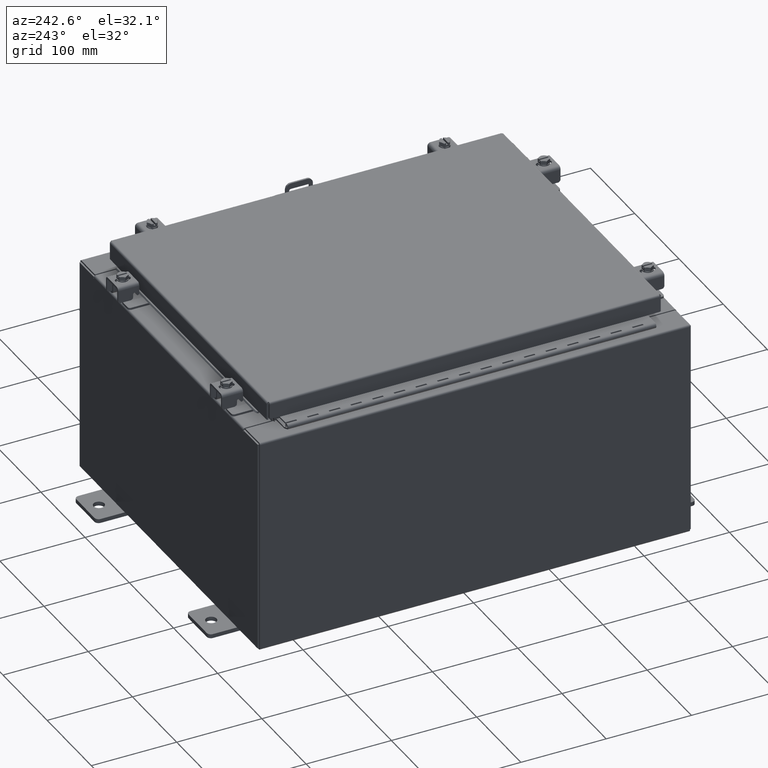
[diagram: clean part render]
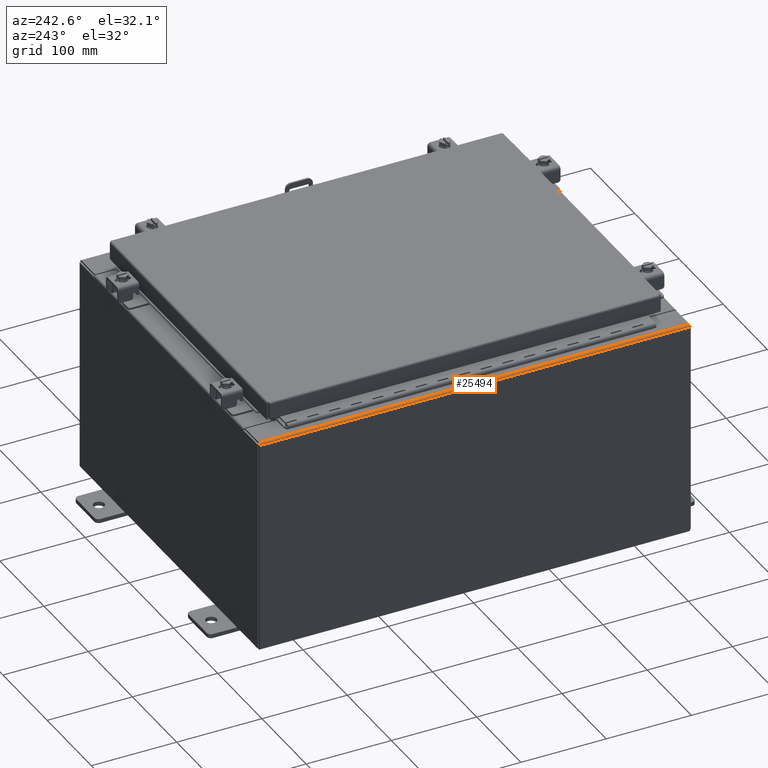
[diagram: same view with one face highlighted and labeled with its STEP entity id]
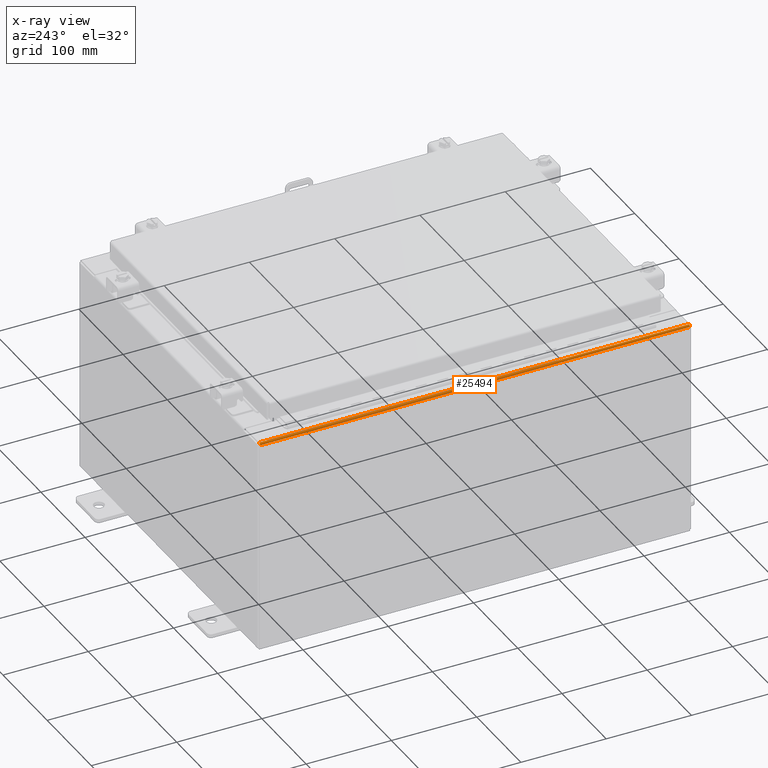
[diagram: x-ray of the same camera — body ghosted, the highlighted face saturated]
A machine part, auxiliary view. The second image highlights one B-rep face of the part: STEP entity #25494.
The next image is the same camera in x-ray: the body ghosted, the highlighted face saturated — about 0% of this face is hidden behind the body in this view.
In plain terms, the highlighted cylindrical surface (edge-blend (fillet) strip) has radius 2.2276 mm, axis along (-0, -1, -0).
Its self-contained STEP definition (entity closure, byte-faithful):
#1281 = CIRCLE ( 'NONE', #18644, 0.08769999999999918100 ) ;
#1603 = LINE ( 'NONE', #15165, #25097 ) ;
#1783 = DIRECTION ( 'NONE',  ( 0.0000000000000000000, 1.000000000000000000, 0.0000000000000000000 ) ) ;
#3465 = CIRCLE ( 'NONE', #22845, 0.08769999999999918100 ) ;
#5280 = CYLINDRICAL_SURFACE ( 'NONE', #7145, 0.08769999999999918100 ) ;
#5693 = ORIENTED_EDGE ( 'NONE', *, *, #13336, .F. ) ;
#6310 = ORIENTED_EDGE ( 'NONE', *, *, #13913, .F. ) ;
#7145 = AXIS2_PLACEMENT_3D ( 'NONE', #25088, #22849, #11511 ) ;
#7323 = CARTESIAN_POINT ( 'NONE',  ( -7.912300000000032100, -9.925300000000000000, 9.837599999999998300 ) ) ;
#7613 = LINE ( 'NONE', #13667, #14422 ) ;
#7684 = DIRECTION ( 'NONE',  ( -0.0000000000000000000, -1.000000000000000000, -0.0000000000000000000 ) ) ;
#7773 = CARTESIAN_POINT ( 'NONE',  ( -8.000000000000032000, 9.925299999999998200, 9.837599999999998300 ) ) ;
#9597 = EDGE_CURVE ( 'NONE', #9756, #13533, #7613, .T. ) ;
#9756 = VERTEX_POINT ( 'NONE', #27359 ) ;
#11511 = DIRECTION ( 'NONE',  ( 0.0000000000000000000, 0.0000000000000000000, 1.000000000000000000 ) ) ;
#12703 = DIRECTION ( 'NONE',  ( 0.0000000000000000000, 0.0000000000000000000, -1.000000000000000000 ) ) ;
#13336 = EDGE_CURVE ( 'NONE', #23448, #13533, #3465, .T. ) ;
#13402 = CARTESIAN_POINT ( 'NONE',  ( -8.000000000000032000, -9.925300000000000000, 9.837599999999998300 ) ) ;
#13533 = VERTEX_POINT ( 'NONE', #19234 ) ;
#13667 = CARTESIAN_POINT ( 'NONE',  ( -7.912300000000032100, 9.925299999999998200, 9.925299999999998200 ) ) ;
#13913 = EDGE_CURVE ( 'NONE', #9756, #14259, #1281, .T. ) ;
#14259 = VERTEX_POINT ( 'NONE', #13402 ) ;
#14422 = VECTOR ( 'NONE', #26973, 39.37007874015748100 ) ;
#15165 = CARTESIAN_POINT ( 'NONE',  ( -8.000000000000032000, -9.925300000000001800, 9.837599999999998300 ) ) ;
#17415 = FACE_OUTER_BOUND ( 'NONE', #19583, .T. ) ;
#17990 = ORIENTED_EDGE ( 'NONE', *, *, #28815, .F. ) ;
#18644 = AXIS2_PLACEMENT_3D ( 'NONE', #7323, #7684, #27151 ) ;
#19234 = CARTESIAN_POINT ( 'NONE',  ( -7.912300000000032100, 9.925299999999998200, 9.925299999999998200 ) ) ;
#19583 = EDGE_LOOP ( 'NONE', ( #17990, #6310, #24862, #5693 ) ) ;
#19733 = DIRECTION ( 'NONE',  ( 0.0000000000000000000, 1.000000000000000000, 0.0000000000000000000 ) ) ;
#22845 = AXIS2_PLACEMENT_3D ( 'NONE', #23056, #1783, #12703 ) ;
#22849 = DIRECTION ( 'NONE',  ( -0.0000000000000000000, -1.000000000000000000, -0.0000000000000000000 ) ) ;
#23056 = CARTESIAN_POINT ( 'NONE',  ( -7.912300000000032100, 9.925299999999998200, 9.837599999999998300 ) ) ;
#23448 = VERTEX_POINT ( 'NONE', #7773 ) ;
#24862 = ORIENTED_EDGE ( 'NONE', *, *, #9597, .T. ) ;
#25088 = CARTESIAN_POINT ( 'NONE',  ( -7.912300000000032100, -9.925300000000001800, 9.837599999999998300 ) ) ;
#25097 = VECTOR ( 'NONE', #19733, 39.37007874015748100 ) ;
#25494 = ADVANCED_FACE ( 'NONE', ( #17415 ), #5280, .T. ) ;
#26973 = DIRECTION ( 'NONE',  ( -0.0000000000000000000, 1.000000000000000000, -1.100963394019027600E-016 ) ) ;
#27151 = DIRECTION ( 'NONE',  ( 0.0000000000000000000, 0.0000000000000000000, -1.000000000000000000 ) ) ;
#27359 = CARTESIAN_POINT ( 'NONE',  ( -7.912300000000032100, -9.925300000000001800, 9.925300000000000000 ) ) ;
#28815 = EDGE_CURVE ( 'NONE', #14259, #23448, #1603, .T. ) ;